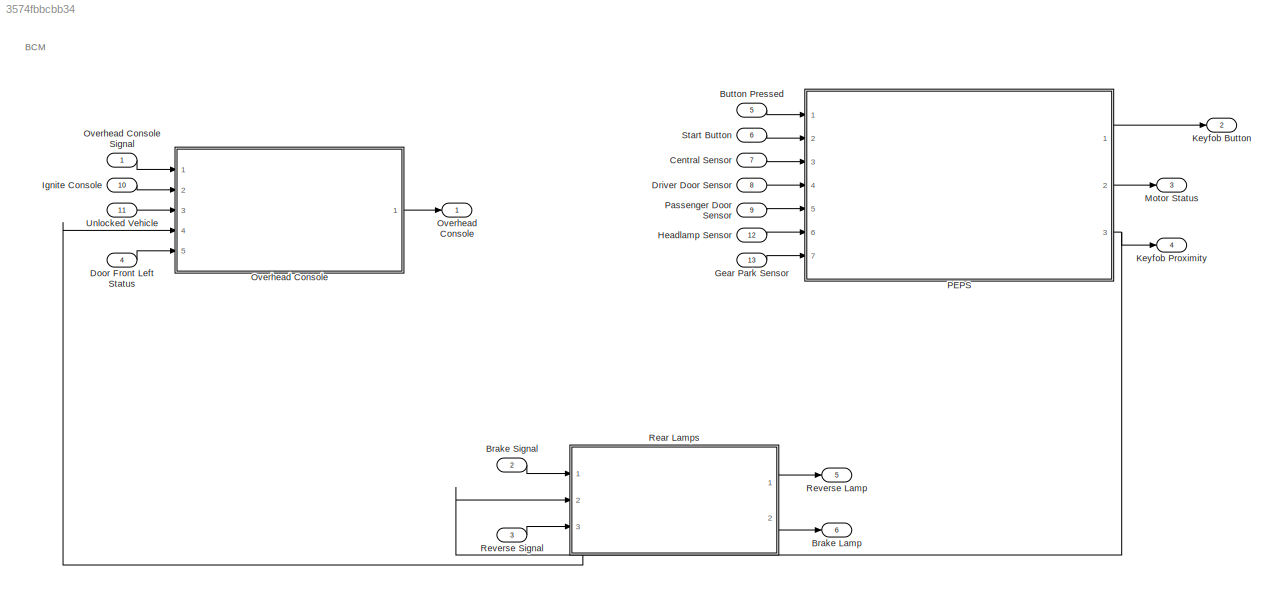
MODEL slx_3574fbbcbb34
KIND model
CONFIG AbsTol = auto
CONFIG EnableMultiTasking = off
CONFIG FixedStep = 0.1
CONFIG MaxStep = auto
CONFIG MinStep = auto
CONFIG RelTol = 1e-3
CONFIG SampleTimeConstraint = Unconstrained
CONFIG Solver = FixedStepAuto
CONFIG SolverName = FixedStepAuto
CONFIG StartTime = 0.0
CONFIG StopTime = 10.0
BLOCK [Outport]   Overhead Console  
  IconDisplay = Port number
BLOCK [Outport] Brake Lamp
  IconDisplay = Port number
  Port = 6
BLOCK [Inport] Brake Signal
  IconDisplay = Port number
  Port = 2
BLOCK [Inport] Button Pressed
  IconDisplay = Port number
  Port = 5
BLOCK [Inport] Central Sensor
  IconDisplay = Port number
  Port = 7
BLOCK [Inport] Door Front Left Status
  IconDisplay = Port number
  Port = 4
BLOCK [Inport] Driver Door Sensor
  IconDisplay = Port number
  Port = 8
BLOCK [Inport] Gear Park Sensor
  IconDisplay = Port number
  Port = 13
BLOCK [Inport] Headlamp Sensor
  IconDisplay = Port number
  Port = 12
BLOCK [Inport] Ignite Console
  IconDisplay = Port number
  Port = 10
BLOCK [Outport] Keyfob Button
  IconDisplay = Port number
  Port = 2
BLOCK [Outport] Keyfob Proximity
  IconDisplay = Port number
  Port = 4
BLOCK [Outport] Motor Status
  IconDisplay = Port number
  Port = 3
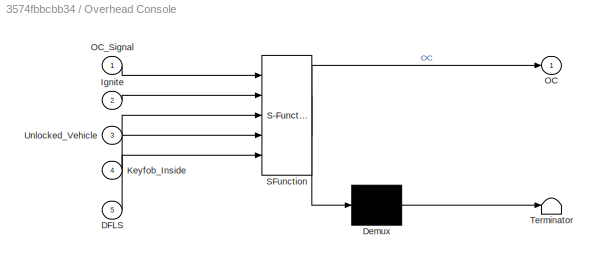
BLOCK [SubSystem] Overhead Console
  ErrorFcn = Stateflow.Translate.translate
  PermitHierarchicalResolution = ExplicitOnly
  Ports = [5, 1]
  RequestExecContextInheritance = off
  SFBlockType = Chart
  TreatAsAtomicUnit = on
BLOCK [Inport] Overhead Console Signal
  IconDisplay = Port number
BLOCK [Demux] Overhead Console/ Demux 
  Outputs = 1
  Ports = [1, 1]
BLOCK [S-Function] Overhead Console/ SFunction 
  EnableBusSupport = on
  FunctionName = sf_sfun
  PortCounts = [5 2]
  Ports = [5, 2]
  SFcnIsStateOwnerBlock = off
  SFunctionDeploymentMode = off
  Tag = Stateflow S-Function 4
BLOCK [Terminator] Overhead Console/ Terminator 
BLOCK [Inport] Overhead Console/DFLS
  IconDisplay = Port number
  Port = 5
BLOCK [Inport] Overhead Console/Ignite
  IconDisplay = Port number
  Port = 2
BLOCK [Inport] Overhead Console/Keyfob_Inside
  IconDisplay = Port number
  Port = 4
BLOCK [Outport] Overhead Console/OC
  IconDisplay = Port number
BLOCK [Inport] Overhead Console/OC_Signal
  IconDisplay = Port number
BLOCK [Inport] Overhead Console/Unlocked_Vehicle
  IconDisplay = Port number
  Port = 3
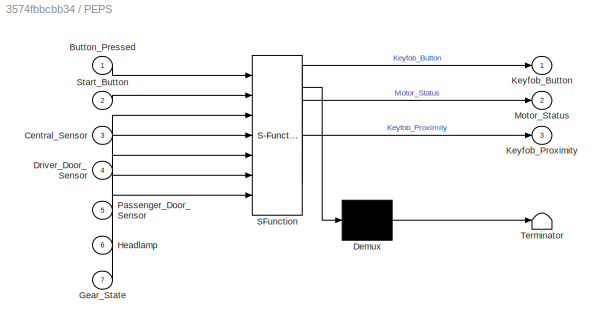
BLOCK [SubSystem] PEPS
  ErrorFcn = Stateflow.Translate.translate
  PermitHierarchicalResolution = ExplicitOnly
  Ports = [7, 3]
  RequestExecContextInheritance = off
  SFBlockType = Chart
  TreatAsAtomicUnit = on
BLOCK [Demux] PEPS/ Demux 
  Outputs = 1
  Ports = [1, 1]
BLOCK [S-Function] PEPS/ SFunction 
  EnableBusSupport = on
  FunctionName = sf_sfun
  PortCounts = [7 4]
  Ports = [7, 4]
  SFcnIsStateOwnerBlock = off
  SFunctionDeploymentMode = off
  Tag = Stateflow S-Function 7
BLOCK [Terminator] PEPS/ Terminator 
BLOCK [Inport] PEPS/Button_Pressed
  IconDisplay = Port number
BLOCK [Inport] PEPS/Central_Sensor
  IconDisplay = Port number
  Port = 3
BLOCK [Inport] PEPS/Driver_Door_Sensor
  IconDisplay = Port number
  Port = 4
BLOCK [Inport] PEPS/Gear_State
  IconDisplay = Port number
  Port = 7
BLOCK [Inport] PEPS/Headlamp
  IconDisplay = Port number
  Port = 6
BLOCK [Outport] PEPS/Keyfob_Button
  IconDisplay = Port number
BLOCK [Outport] PEPS/Keyfob_Proximity
  IconDisplay = Port number
  Port = 3
BLOCK [Outport] PEPS/Motor_Status
  IconDisplay = Port number
  Port = 2
BLOCK [Inport] PEPS/Passenger_Door_Sensor
  IconDisplay = Port number
  Port = 5
BLOCK [Inport] PEPS/Start_Button
  IconDisplay = Port number
  Port = 2
BLOCK [Inport] Passenger Door Sensor
  IconDisplay = Port number
  Port = 9
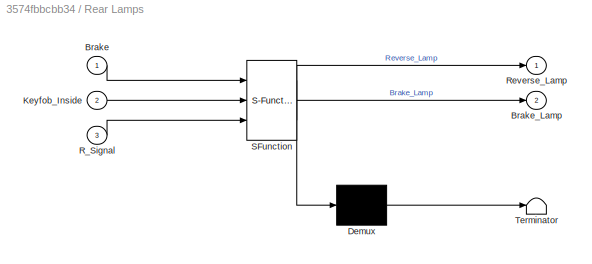
BLOCK [SubSystem] Rear Lamps
  ErrorFcn = Stateflow.Translate.translate
  PermitHierarchicalResolution = ExplicitOnly
  Ports = [3, 2]
  RequestExecContextInheritance = off
  SFBlockType = Chart
  TreatAsAtomicUnit = on
BLOCK [Demux] Rear Lamps/ Demux 
  Outputs = 1
  Ports = [1, 1]
BLOCK [S-Function] Rear Lamps/ SFunction 
  EnableBusSupport = on
  FunctionName = sf_sfun
  PortCounts = [3 3]
  Ports = [3, 3]
  SFcnIsStateOwnerBlock = off
  SFunctionDeploymentMode = off
  Tag = Stateflow S-Function 5
BLOCK [Terminator] Rear Lamps/ Terminator 
BLOCK [Inport] Rear Lamps/Brake
  IconDisplay = Port number
BLOCK [Outport] Rear Lamps/Brake_Lamp
  IconDisplay = Port number
  Port = 2
BLOCK [Inport] Rear Lamps/Keyfob_Inside
  IconDisplay = Port number
  Port = 2
BLOCK [Inport] Rear Lamps/R_Signal
  IconDisplay = Port number
  Port = 3
BLOCK [Outport] Rear Lamps/Reverse_Lamp
  IconDisplay = Port number
BLOCK [Outport] Reverse Lamp
  IconDisplay = Port number
  Port = 5
BLOCK [Inport] Reverse Signal
  IconDisplay = Port number
  Port = 3
BLOCK [Inport] Start Button
  IconDisplay = Port number
  Port = 6
BLOCK [Inport] Unlocked Vehicle
  IconDisplay = Port number
  Port = 11
ANNOTATION (root): BCM
LINE Brake Signal:1 -> Rear Lamps:1
LINE Button Pressed:1 -> PEPS:1
LINE Central Sensor:1 -> PEPS:3
LINE Door Front Left Status:1 -> Overhead Console:5
LINE Driver Door Sensor:1 -> PEPS:4
LINE Gear Park Sensor:1 -> PEPS:7
LINE Headlamp Sensor:1 -> PEPS:6
LINE Ignite Console:1 -> Overhead Console:2
LINE Overhead Console Signal:1 -> Overhead Console:1
LINE Overhead Console:1 ->   Overhead Console  :1
LINE PEPS:1 -> Keyfob Button:1
LINE PEPS:2 -> Motor Status:1
NET PEPS:3 -> Keyfob Proximity:1, Overhead Console:4, Rear Lamps:2
LINE Passenger Door Sensor:1 -> PEPS:5
LINE Rear Lamps:1 -> Reverse Lamp:1
LINE Rear Lamps:2 -> Brake Lamp:1
LINE Reverse Signal:1 -> Rear Lamps:3
LINE Start Button:1 -> PEPS:2
LINE Unlocked Vehicle:1 -> Overhead Console:3
note: NET lines group one-source signal fan-out (src -> all destinations, sorted); 1:1 wires keep LINE
CHART Overhead Console states=5 transitions=9
  STATE_LABEL 'state_ic\n\nduring :\nOC = 1;'
  STATE_LABEL 'Initial_State\nentry:\nOC = 0;'
  STATE_LABEL 'OC_On_Initial\nduring:\nOC = 1;'
  STATE_LABEL 'Overhead_Console\nduring:\nif (OC_Signal == 1)\n    OC = 1;\nelseif (OC_Signal == 0)\n    OC = 0;\nend\n'
  STATE_LABEL 'OC_Off1\nentry:\nOC = 0;'
CHART Rear Lamps states=3 transitions=0
  STATE_LABEL 'Rear_Lamps'
  STATE_LABEL 'Brake_Lamp_Enable\nduring:\nif (Keyfob_Inside == 1 & Brake == 1)\n    Brake_Lamp = 1;\nelse\n    Brake_Lamp = 0;\nend'
  STATE_LABEL 'Reverse_Enable\nduring:\nif (R_Signal == 4)\n    Reverse_Lamp = 1;\nelse\n    Reverse_Lamp = 0;\nend'
  STATE_LABEL 'Brake_Lamp_Enable\nduring:\nif (Keyfob_Inside == 1 & Brake == 1)\n    Brake_Lamp = 1;\nelse\n    Brake_Lamp = 0;\nend'
  STATE_LABEL 'Reverse_Enable\nduring:\nif (R_Signal == 4)\n    Reverse_Lamp = 1;\nelse\n    Reverse_Lamp = 0;\nend'
CHART PEPS states=4 transitions=0
  STATE_LABEL 'PEPS'
  STATE_LABEL 'PEPS_Smart_Key\nentry:\nMotor_Status = 0;\nduring:\nIgnite = Start_Button;\nif (Ignite == 1 & Keyfob_Proximity == 1 & Gear_State == 1)\n    Motor_Status = 1;\nelseif (Ignite == 0 & Headlamp == 0 & Gear_State == 1)\n    Motor_Status = 0;\nend\n'
  STATE_LABEL 'PEPS_Keyfob\nentry:\nKeyfob_Button = 0;\nduring:\nKeyfob_Button = Button_Pressed;\nif (Button_Pressed == 1)\n    Keyfob_Button = 1;\nelseif (Button_Pressed == 2)\n    Keyfob_Button = 2;\nend\n'
  STATE_LABEL 'PEPS_Sattelite\nduring:\nS1 = Driver_Door_Sensor;\nS2 = Central_Sensor;\nS3 = Passenger_Door_Sensor;\nif (S1 <= 2 & S3 <= 2 & S2 <= 1.5)\n    Keyfob_Proximity = 1;\nelse\n    Keyfob_Proximity = 0;\nend\n'
  STATE_LABEL 'PEPS_Smart_Key\nentry:\nMotor_Status = 0;\nduring:\nIgnite = Start_Button;\nif (Ignite == 1 & Keyfob_Proximity == 1 & Gear_State == 1)\n    Motor_Status = 1;\nelseif (Ignite == 0 & Headlamp == 0 & Gear_State == 1)\n    Motor_Status = 0;\nend\n'
  STATE_LABEL 'PEPS_Keyfob\nentry:\nKeyfob_Button = 0;\nduring:\nKeyfob_Button = Button_Pressed;\nif (Button_Pressed == 1)\n    Keyfob_Button = 1;\nelseif (Button_Pressed == 2)\n    Keyfob_Button = 2;\nend\n'
  STATE_LABEL 'PEPS_Sattelite\nduring:\nS1 = Driver_Door_Sensor;\nS2 = Central_Sensor;\nS3 = Passenger_Door_Sensor;\nif (S1 <= 2 & S3 <= 2 & S2 <= 1.5)\n    Keyfob_Proximity = 1;\nelse\n    Keyfob_Proximity = 0;\nend\n'
